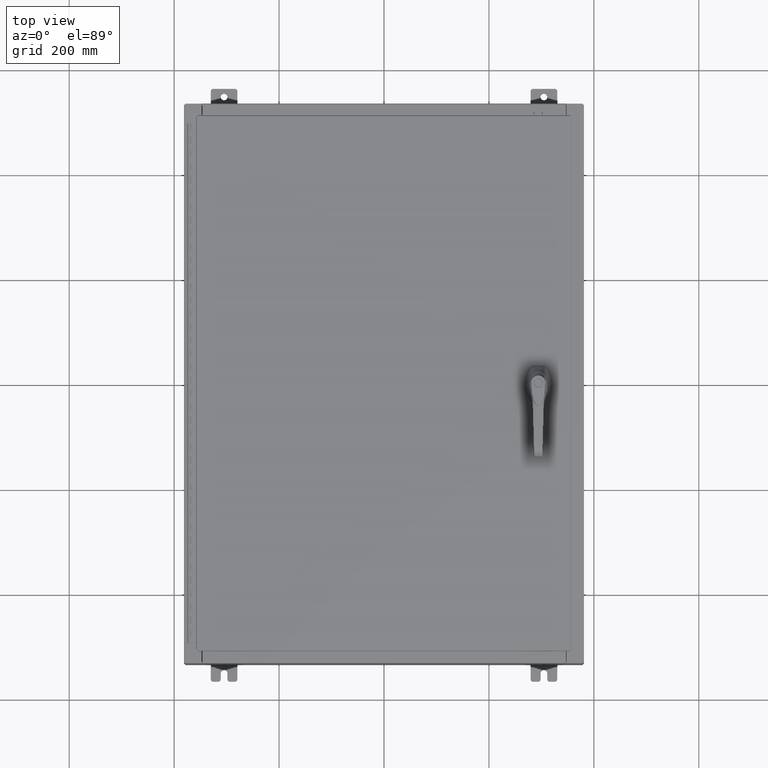
[diagram: clean part render]
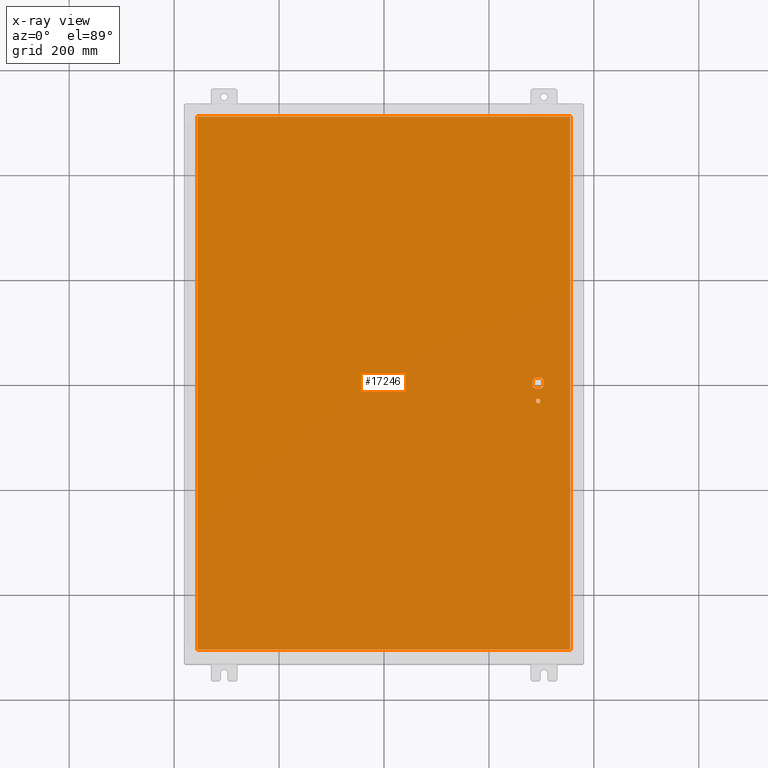
[diagram: x-ray — body ghosted, one internal face saturated and labeled with its STEP entity id]
A machine part, top view, then the same camera in x-ray: the body is ghosted and one INTERNAL B-rep face — a face not visible from any outside direction — is saturated and labeled: STEP entity #17246.
In plain terms, the highlighted planar face has unit normal (0, 0, -1).
Its self-contained STEP definition (entity closure, byte-faithful):
#149 = ORIENTED_EDGE ( 'NONE', *, *, #48885, .T. ) ;
#1212 = LINE ( 'NONE', #9518, #50934 ) ;
#2125 = VERTEX_POINT ( 'NONE', #41535 ) ;
#2177 = VERTEX_POINT ( 'NONE', #10075 ) ;
#2935 = FACE_BOUND ( 'NONE', #111509, .T. ) ;
#3396 = DIRECTION ( 'NONE',  ( 1.000000000000000000, 0.0000000000000000000, 0.0000000000000000000 ) ) ;
#5522 = CARTESIAN_POINT ( 'NONE',  ( 11.57800000000000100, 0.0000000000000000000, -0.07470000000000003000 ) ) ;
#6112 = DIRECTION ( 'NONE',  ( -0.0000000000000000000, -0.0000000000000000000, 1.000000000000000000 ) ) ;
#8112 = VECTOR ( 'NONE', #24229, 39.37007874015748100 ) ;
#9518 = CARTESIAN_POINT ( 'NONE',  ( 13.99030000000000100, 20.00630000000000700, -0.07469999999999804600 ) ) ;
#9668 = CARTESIAN_POINT ( 'NONE',  ( 11.17500000000007500, 0.0000000000000000000, -0.07470000000000003000 ) ) ;
#10075 = CARTESIAN_POINT ( 'NONE',  ( -13.99029999999999800, -20.00630000000000700, -0.07470000000000000300 ) ) ;
#10207 = DIRECTION ( 'NONE',  ( -0.0000000000000000000, -0.0000000000000000000, 1.000000000000000000 ) ) ;
#13157 = CARTESIAN_POINT ( 'NONE',  ( -13.99029999999999800, 20.00630000000000300, -0.07470000000000000300 ) ) ;
#13856 = EDGE_CURVE ( 'NONE', #41448, #2125, #112317, .T. ) ;
#14975 = DIRECTION ( 'NONE',  ( 0.0000000000000000000, 1.000000000000000000, 0.0000000000000000000 ) ) ;
#15410 = CARTESIAN_POINT ( 'NONE',  ( 13.99030000000000100, -20.00630000000000300, -0.07470000000000019700 ) ) ;
#15450 = VERTEX_POINT ( 'NONE', #66116 ) ;
#15539 = DIRECTION ( 'NONE',  ( -1.000000000000000000, -1.776356839400246700E-015, 0.0000000000000000000 ) ) ;
#15880 = ORIENTED_EDGE ( 'NONE', *, *, #27563, .F. ) ;
#17246 = ADVANCED_FACE ( 'NONE', ( #79178, #128831, #2935 ), #44629, .T. ) ;
#18642 = AXIS2_PLACEMENT_3D ( 'NONE', #116695, #57106, #126621 ) ;
#24119 = AXIS2_PLACEMENT_3D ( 'NONE', #65604, #6112, #75610 ) ;
#24190 = VECTOR ( 'NONE', #71107, 39.37007874015748100 ) ;
#24229 = DIRECTION ( 'NONE',  ( 1.000000000000000000, -0.0000000000000000000, -0.0000000000000000000 ) ) ;
#27223 = EDGE_CURVE ( 'NONE', #120491, #97595, #103543, .T. ) ;
#27563 = EDGE_CURVE ( 'NONE', #57018, #125855, #101959, .T. ) ;
#29620 = VERTEX_POINT ( 'NONE', #114964 ) ;
#30981 = EDGE_LOOP ( 'NONE', ( #60453, #107338, #64251, #49133 ) ) ;
#31397 = LINE ( 'NONE', #63750, #8112 ) ;
#34368 = AXIS2_PLACEMENT_3D ( 'NONE', #34645, #84190, #54593 ) ;
#34645 = CARTESIAN_POINT ( 'NONE',  ( 0.0000000000000000000, 0.0000000000000000000, -0.07470000000000000300 ) ) ;
#36283 = AXIS2_PLACEMENT_3D ( 'NONE', #69718, #10207, #79714 ) ;
#36609 = LINE ( 'NONE', #38034, #89563 ) ;
#36673 = EDGE_CURVE ( 'NONE', #37457, #107766, #112620, .T. ) ;
#37457 = VERTEX_POINT ( 'NONE', #102810 ) ;
#38034 = CARTESIAN_POINT ( 'NONE',  ( -13.99029999999999800, 20.00630000000000300, -0.07470000000000019700 ) ) ;
#40815 = CARTESIAN_POINT ( 'NONE',  ( 11.57800000000000100, 0.0000000000000000000, -0.07470000000000003000 ) ) ;
#40877 = AXIS2_PLACEMENT_3D ( 'NONE', #59140, #128632, #69181 ) ;
#40960 = VERTEX_POINT ( 'NONE', #115679 ) ;
#41448 = VERTEX_POINT ( 'NONE', #57831 ) ;
#41535 = CARTESIAN_POINT ( 'NONE',  ( 11.40650000000000100, -1.338000000000000100, -0.07470000000000003000 ) ) ;
#42150 = ORIENTED_EDGE ( 'NONE', *, *, #13856, .T. ) ;
#44629 = PLANE ( 'NONE',  #34368 ) ;
#45074 = CARTESIAN_POINT ( 'NONE',  ( 11.17500000000007500, -0.2002273707563079800, -0.07470000000000003000 ) ) ;
#46576 = EDGE_CURVE ( 'NONE', #2177, #29620, #31397, .T. ) ;
#48885 = EDGE_CURVE ( 'NONE', #57018, #120491, #122728, .T. ) ;
#49133 = ORIENTED_EDGE ( 'NONE', *, *, #59143, .F. ) ;
#50776 = DIRECTION ( 'NONE',  ( -1.000000000000000000, -1.776356839400246700E-015, 0.0000000000000000000 ) ) ;
#50934 = VECTOR ( 'NONE', #128459, 39.37007874015748100 ) ;
#52087 = VECTOR ( 'NONE', #117316, 39.37007874015748100 ) ;
#54593 = DIRECTION ( 'NONE',  ( -1.000000000000000000, 0.0000000000000000000, -0.0000000000000000000 ) ) ;
#56017 = AXIS2_PLACEMENT_3D ( 'NONE', #40815, #110401, #50776 ) ;
#57018 = VERTEX_POINT ( 'NONE', #125124 ) ;
#57106 = DIRECTION ( 'NONE',  ( -0.0000000000000000000, -0.0000000000000000000, 1.000000000000000000 ) ) ;
#57798 = LINE ( 'NONE', #15410, #110768 ) ;
#57831 = CARTESIAN_POINT ( 'NONE',  ( 11.74950000000000300, -1.338000000000000100, -0.07470000000000003000 ) ) ;
#58868 = ORIENTED_EDGE ( 'NONE', *, *, #115880, .T. ) ;
#59140 = CARTESIAN_POINT ( 'NONE',  ( 11.57800000000000100, -1.338000000000000100, -0.07470000000000003000 ) ) ;
#59143 = EDGE_CURVE ( 'NONE', #15450, #90012, #1212, .T. ) ;
#59726 = VECTOR ( 'NONE', #3396, 39.37007874015748100 ) ;
#60453 = ORIENTED_EDGE ( 'NONE', *, *, #64689, .F. ) ;
#61273 = CIRCLE ( 'NONE', #24119, 0.4499999999999168000 ) ;
#62898 = CARTESIAN_POINT ( 'NONE',  ( 0.0000000000000000000, -0.4029999999999252000, -0.07470000000000003000 ) ) ;
#63700 = EDGE_CURVE ( 'NONE', #109376, #37457, #126343, .T. ) ;
#63750 = CARTESIAN_POINT ( 'NONE',  ( -13.99029999999999800, -20.00630000000001000, -0.07469999999999804600 ) ) ;
#64251 = ORIENTED_EDGE ( 'NONE', *, *, #104499, .F. ) ;
#64689 = EDGE_CURVE ( 'NONE', #29620, #15450, #57798, .T. ) ;
#65377 = VECTOR ( 'NONE', #89184, 39.37007874015748100 ) ;
#65436 = ORIENTED_EDGE ( 'NONE', *, *, #119661, .T. ) ;
#65604 = CARTESIAN_POINT ( 'NONE',  ( 11.57800000000000100, 0.0000000000000000000, -0.07470000000000003000 ) ) ;
#66116 = CARTESIAN_POINT ( 'NONE',  ( 13.99030000000000100, 20.00630000000000300, -0.07470000000000000300 ) ) ;
#67945 = EDGE_CURVE ( 'NONE', #107766, #125855, #127502, .T. ) ;
#69181 = DIRECTION ( 'NONE',  ( -1.000000000000000000, 0.0000000000000000000, 0.0000000000000000000 ) ) ;
#69718 = CARTESIAN_POINT ( 'NONE',  ( 11.57800000000000100, -1.338000000000000100, -0.07470000000000003000 ) ) ;
#71107 = DIRECTION ( 'NONE',  ( -1.000000000000000000, 0.0000000000000000000, 0.0000000000000000000 ) ) ;
#71166 = CARTESIAN_POINT ( 'NONE',  ( 11.77822737075631200, 0.4029999999999250300, -0.07470000000000003000 ) ) ;
#75038 = DIRECTION ( 'NONE',  ( -0.0000000000000000000, -0.0000000000000000000, 1.000000000000000000 ) ) ;
#75610 = DIRECTION ( 'NONE',  ( -1.000000000000000000, -5.329070518200740300E-015, 0.0000000000000000000 ) ) ;
#77249 = AXIS2_PLACEMENT_3D ( 'NONE', #5522, #75038, #15539 ) ;
#79178 = FACE_BOUND ( 'NONE', #107443, .T. ) ;
#79714 = DIRECTION ( 'NONE',  ( -1.000000000000000000, 0.0000000000000000000, 0.0000000000000000000 ) ) ;
#80236 = ORIENTED_EDGE ( 'NONE', *, *, #67945, .T. ) ;
#80237 = CARTESIAN_POINT ( 'NONE',  ( 0.0000000000000000000, 0.4029999999999252000, -0.07470000000000003000 ) ) ;
#84190 = DIRECTION ( 'NONE',  ( 0.0000000000000000000, 0.0000000000000000000, -1.000000000000000000 ) ) ;
#86033 = CIRCLE ( 'NONE', #36283, 0.1715000000000011500 ) ;
#87303 = ORIENTED_EDGE ( 'NONE', *, *, #63700, .T. ) ;
#89184 = DIRECTION ( 'NONE',  ( 0.0000000000000000000, -1.000000000000000000, 0.0000000000000000000 ) ) ;
#89563 = VECTOR ( 'NONE', #107620, 39.37007874015748100 ) ;
#90012 = VERTEX_POINT ( 'NONE', #13157 ) ;
#96854 = EDGE_CURVE ( 'NONE', #2125, #41448, #86033, .T. ) ;
#97595 = VERTEX_POINT ( 'NONE', #119537 ) ;
#98905 = ORIENTED_EDGE ( 'NONE', *, *, #36673, .T. ) ;
#101959 = LINE ( 'NONE', #104095, #52087 ) ;
#102810 = CARTESIAN_POINT ( 'NONE',  ( 11.37777262924369200, -0.4029999999999250300, -0.07470000000000003000 ) ) ;
#103543 = LINE ( 'NONE', #80237, #24190 ) ;
#104095 = CARTESIAN_POINT ( 'NONE',  ( 11.98099999999992900, 6.538620706741755000E-014, -0.07470000000000003000 ) ) ;
#104397 = ORIENTED_EDGE ( 'NONE', *, *, #96854, .T. ) ;
#104499 = EDGE_CURVE ( 'NONE', #90012, #2177, #36609, .T. ) ;
#107338 = ORIENTED_EDGE ( 'NONE', *, *, #46576, .F. ) ;
#107443 = EDGE_LOOP ( 'NONE', ( #42150, #104397 ) ) ;
#107620 = DIRECTION ( 'NONE',  ( 0.0000000000000000000, -1.000000000000000000, 0.0000000000000000000 ) ) ;
#107766 = VERTEX_POINT ( 'NONE', #121862 ) ;
#109376 = VERTEX_POINT ( 'NONE', #45074 ) ;
#110401 = DIRECTION ( 'NONE',  ( -0.0000000000000000000, -0.0000000000000000000, 1.000000000000000000 ) ) ;
#110768 = VECTOR ( 'NONE', #14975, 39.37007874015748100 ) ;
#111509 = EDGE_LOOP ( 'NONE', ( #80236, #15880, #149, #112037, #58868, #65436, #87303, #98905 ) ) ;
#112037 = ORIENTED_EDGE ( 'NONE', *, *, #27223, .T. ) ;
#112317 = CIRCLE ( 'NONE', #40877, 0.1715000000000011500 ) ;
#112620 = LINE ( 'NONE', #62898, #59726 ) ;
#114964 = CARTESIAN_POINT ( 'NONE',  ( 13.99030000000000100, -20.00630000000000700, -0.07470000000000000300 ) ) ;
#115679 = CARTESIAN_POINT ( 'NONE',  ( 11.17500000000007500, 0.2002273707563075900, -0.07470000000000003000 ) ) ;
#115880 = EDGE_CURVE ( 'NONE', #97595, #40960, #61273, .T. ) ;
#116695 = CARTESIAN_POINT ( 'NONE',  ( 11.57800000000000100, 0.0000000000000000000, -0.07470000000000003000 ) ) ;
#117316 = DIRECTION ( 'NONE',  ( 5.457491617345625000E-015, -1.000000000000000000, 0.0000000000000000000 ) ) ;
#118282 = LINE ( 'NONE', #9668, #65377 ) ;
#118932 = CARTESIAN_POINT ( 'NONE',  ( 11.98099999999992900, -0.2002273707563067300, -0.07470000000000003000 ) ) ;
#119537 = CARTESIAN_POINT ( 'NONE',  ( 11.37777262924369200, 0.4029999999999252000, -0.07470000000000003000 ) ) ;
#119661 = EDGE_CURVE ( 'NONE', #40960, #109376, #118282, .T. ) ;
#120491 = VERTEX_POINT ( 'NONE', #71166 ) ;
#121862 = CARTESIAN_POINT ( 'NONE',  ( 11.77822737075631200, -0.4029999999999252000, -0.07470000000000003000 ) ) ;
#122728 = CIRCLE ( 'NONE', #18642, 0.4499999999999168000 ) ;
#125124 = CARTESIAN_POINT ( 'NONE',  ( 11.98099999999992900, 0.2002273707563075900, -0.07470000000000003000 ) ) ;
#125855 = VERTEX_POINT ( 'NONE', #118932 ) ;
#126343 = CIRCLE ( 'NONE', #56017, 0.4499999999999168000 ) ;
#126621 = DIRECTION ( 'NONE',  ( -1.000000000000000000, -5.329070518200740300E-015, 0.0000000000000000000 ) ) ;
#127502 = CIRCLE ( 'NONE', #77249, 0.4499999999999168000 ) ;
#128459 = DIRECTION ( 'NONE',  ( -1.000000000000000000, -0.0000000000000000000, -0.0000000000000000000 ) ) ;
#128632 = DIRECTION ( 'NONE',  ( -0.0000000000000000000, -0.0000000000000000000, 1.000000000000000000 ) ) ;
#128831 = FACE_OUTER_BOUND ( 'NONE', #30981, .T. ) ;